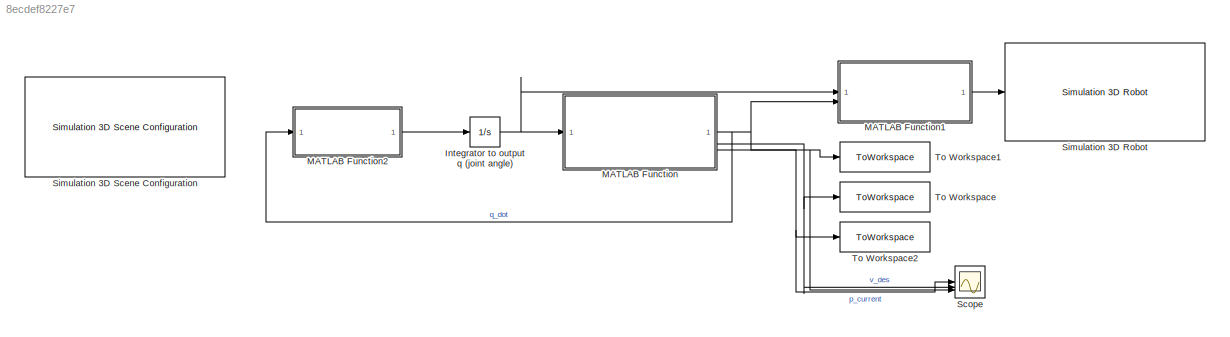
MODEL slx_8ecdef8227e7
KIND model
CONFIG AbsTol = auto
CONFIG EnableMultiTasking = off
CONFIG FixedStep = auto
CONFIG MaxStep = auto
CONFIG MinStep = auto
CONFIG RelTol = 1e-3
CONFIG SampleTimeConstraint = Unconstrained
CONFIG SolverName = VariableStepAuto
CONFIG StartTime = 0.0
CONFIG StopTime = 40
BLOCK [Integrator] Integrator to output q (joint angle)
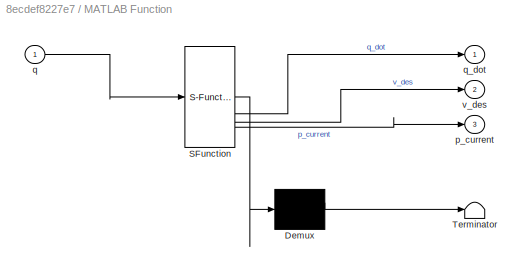
BLOCK [SubSystem] MATLAB Function
  ErrorFcn = Stateflow.Translate.translate
  PermitHierarchicalResolution = ExplicitOnly
  SFBlockType = MATLAB Function
  SystemSampleTime = 0.01
  TreatAsAtomicUnit = on
BLOCK [Demux] MATLAB Function/ Demux 
  Outputs = 1
BLOCK [S-Function] MATLAB Function/ SFunction 
  EnableBusSupport = on
  FunctionName = sf_sfun
  PortCounts = [1 4]
  SFcnIsStateOwnerBlock = off
  SFunctionDeploymentMode = off
  Tag = Stateflow S-Function 2
BLOCK [Terminator] MATLAB Function/ Terminator 
BLOCK [Outport] MATLAB Function/p_current
  Port = 3
BLOCK [Inport] MATLAB Function/q
BLOCK [Outport] MATLAB Function/q_dot
BLOCK [Outport] MATLAB Function/v_des
  Port = 2
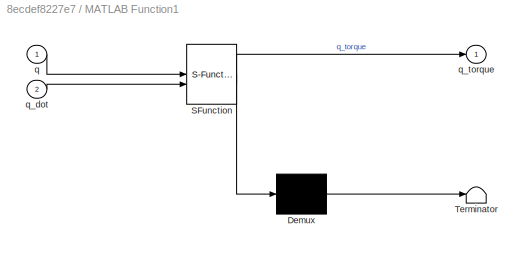
BLOCK [SubSystem] MATLAB Function1
  ErrorFcn = Stateflow.Translate.translate
  PermitHierarchicalResolution = ExplicitOnly
  SFBlockType = MATLAB Function
  SystemSampleTime = 0.01
  TreatAsAtomicUnit = on
BLOCK [Demux] MATLAB Function1/ Demux 
  Outputs = 1
BLOCK [S-Function] MATLAB Function1/ SFunction 
  EnableBusSupport = on
  FunctionName = sf_sfun
  PortCounts = [2 2]
  SFcnIsStateOwnerBlock = off
  SFunctionDeploymentMode = off
  Tag = Stateflow S-Function 1
BLOCK [Terminator] MATLAB Function1/ Terminator 
BLOCK [Inport] MATLAB Function1/q
BLOCK [Inport] MATLAB Function1/q_dot
  Port = 2
BLOCK [Outport] MATLAB Function1/q_torque
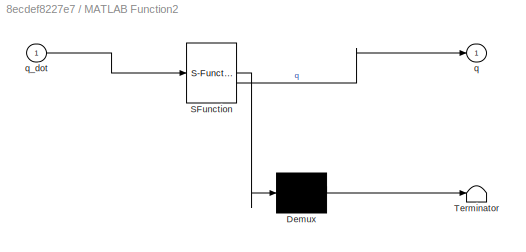
BLOCK [SubSystem] MATLAB Function2
  ErrorFcn = Stateflow.Translate.translate
  PermitHierarchicalResolution = ExplicitOnly
  SFBlockType = MATLAB Function
  SystemSampleTime = 0.01
  TreatAsAtomicUnit = on
BLOCK [Demux] MATLAB Function2/ Demux 
  Outputs = 1
BLOCK [S-Function] MATLAB Function2/ SFunction 
  EnableBusSupport = on
  FunctionName = sf_sfun
  PortCounts = [1 2]
  SFcnIsStateOwnerBlock = off
  SFunctionDeploymentMode = off
  Tag = Stateflow S-Function 3
BLOCK [Terminator] MATLAB Function2/ Terminator 
BLOCK [Outport] MATLAB Function2/q
BLOCK [Inport] MATLAB Function2/q_dot
BLOCK [Scope] Scope
  Floating = off
  NumInputPorts = 3
  ScopeSpecificationString = Simulink.scopes.TimeScopeBlockCfg('CurrentConfiguration', extmgr.ConfigurationSet(extmgr.Configuration('Core','General UI',true),extmgr.Configuration('Core','Source UI',true),extmgr.Configuration('Sources','WiredSimulink',true),extmgr.Configuration('Visuals','Time Domain',true,'SerializedDisplays',{struct('MinYLimReal','-0.625','MaxYLimReal','0.625','YLabelReal','','MinYLimMag','0.00000','MaxYLimM...<+3075ch>
BLOCK [Reference] Simulation 3D Robot  REF=robotsim3dlib/Simulation 3D Robot
  SourceBlock = robotsim3dlib/Simulation 3D Robot
  SourceType = Simulation 3D Robot
BLOCK [Reference] Simulation 3D Scene Configuration  REF=sim3dlib/Simulation 3D Scene Configuration
  LibrarySourceBlock = robotsim3dlib/Simulation 3D Scene Configuration
  Priority = -1
  SourceBlock = sim3dlib/Simulation 3D Scene Configuration
  SourceType = Simulation 3D Scene Configuration
BLOCK [ToWorkspace] To Workspace
  FixptAsFi = on
  MaxDataPoints = inf
  SampleTime = 0.01
  Save2DSignal = 2-D array (concatenate along first dimension)
  SaveFormat = Structure With Time
  VariableName = v_des
BLOCK [ToWorkspace] To Workspace1
  FixptAsFi = on
  MaxDataPoints = inf
  SampleTime = 0.01
  Save2DSignal = 2-D array (concatenate along first dimension)
  SaveFormat = Structure With Time
  VariableName = q_dot
BLOCK [ToWorkspace] To Workspace2
  FixptAsFi = on
  MaxDataPoints = inf
  SampleTime = 0.01
  Save2DSignal = 2-D array (concatenate along first dimension)
  SaveFormat = Structure With Time
  VariableName = p_current
NET Integrator to output q (joint angle):1 -> MATLAB Function1:1, MATLAB Function:1
LINE MATLAB Function1:1 -> Simulation 3D Robot:1
LINE MATLAB Function2:1 -> Integrator to output q (joint angle):1
NET MATLAB Function:1 -> MATLAB Function1:2, MATLAB Function2:1, Scope:1, To Workspace1:1
NET MATLAB Function:2 -> Scope:2, To Workspace:1
NET MATLAB Function:3 -> Scope:3, To Workspace2:1
note: NET lines group one-source signal fan-out (src -> all destinations, sorted); 1:1 wires keep LINE
CHART MATLAB Function1 states=1 transitions=1
  STATE_LABEL 'eML_blk_kernel()'
  STATE_LABEL 'SCRIPT:\nfunction q_torque = jointController(q, q_dot)\nKp = 5;% Proportional gain\nKd = 0.3; % Differential gain\n\n% PD control output\nq_torque = -Kp * q - Kd *q_dot;\n\nend\n\n'
CHART MATLAB Function states=1 transitions=1
  STATE_LABEL 'eML_blk_kernel()'
  STATE_LABEL "SCRIPT:\nfunction [q_dot, v_des, p_current] = computeJacobian(q)\n\n% Declare extrinsic functions\ncoder.extrinsic('geometricJacobian');\ncoder.extrinsic('getTransform');\ncoder.extrinsic('loadrobot');\n\n% Initialize outputs\nq_dot = zeros(6,1);\nv_des = zeros(6,1);\np_current = zeros(3,1);\n\n% Load robot model\nrobot = loadrobot('universalUR5', 'DataFormat', 'column');\n\n% Compute Jacobian\nJ = geometricJacobi...<+952ch>"
CHART MATLAB Function2 states=1 transitions=1
  STATE_LABEL 'eML_blk_kernel()'
  STATE_LABEL 'SCRIPT:\n% function q = jointStateIntegrator(q_dot)\n% %#codegen\n% persistent q_prev;\n% if isempty(q_prev)\n%     % Initial joint angles\n%     q_prev = [0; -pi/2; pi/2; 0; pi/4; 0];\n% end\n% \n% % Set sample time (should match Simulink model)\n% Ts = 0.01;\n% \n% % Euler integration\n% q = q_prev + Ts * q_dot;\n% \n% % To prevent the abnormal q\n% if any(isnan(q)) || any(isinf(q))\n%     q = q_prev;  % q = zer...<+604ch>'
CHART  states=0 transitions=0
CHART  states=0 transitions=0
CHART  states=0 transitions=0
